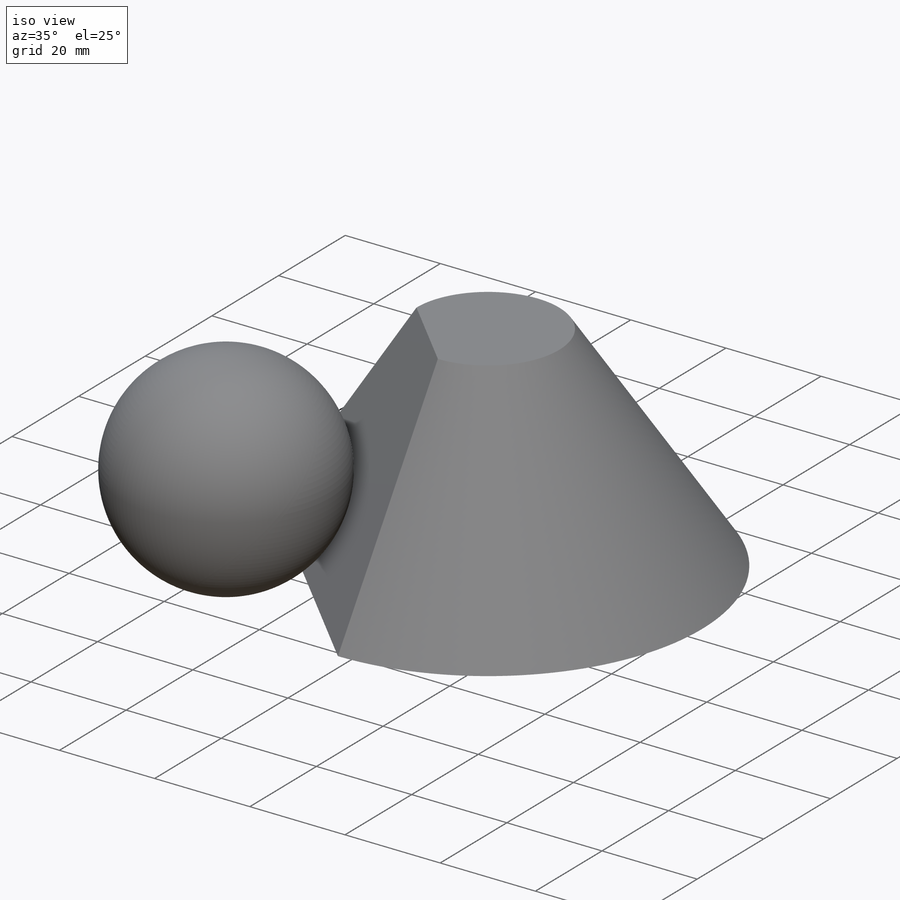
[diagram: iso view]
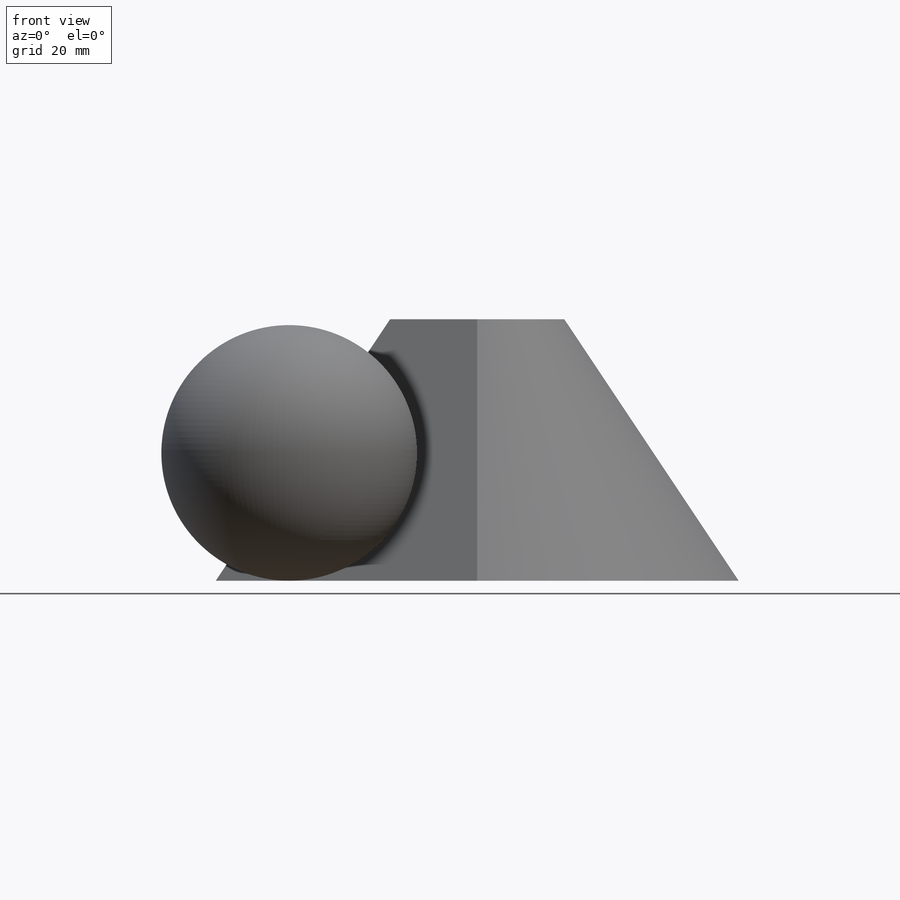
[diagram: front view]
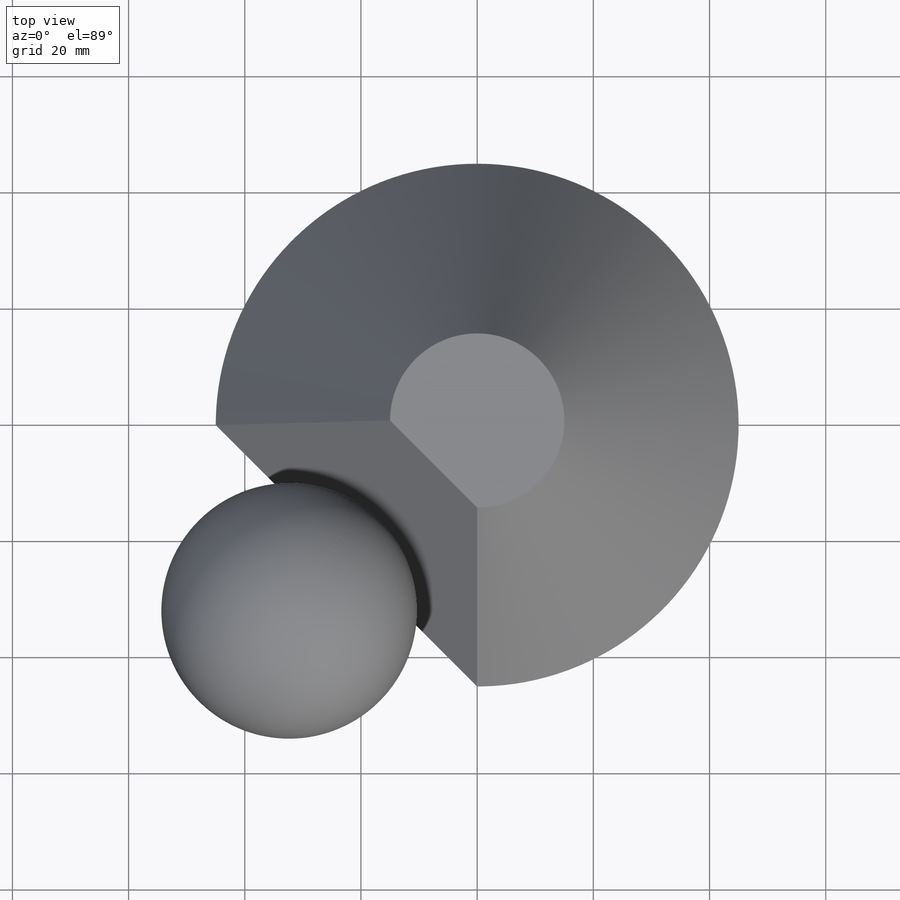
[diagram: top view]
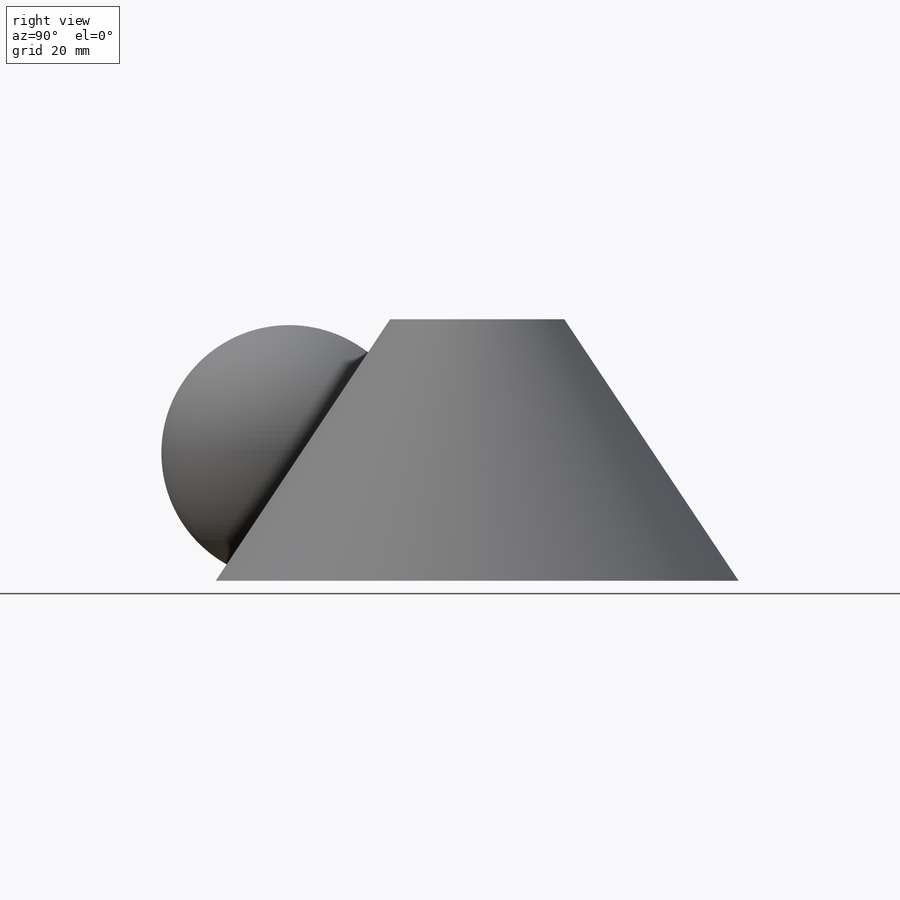
[diagram: right view]
SOLIDWORKS PART (.sldprt)
format: sldprt  version: not decoded by parser v0  size: 687,616 bytes
history: native  units: mm
features: sketch x7, plane x4, revolve x2, material x1 (+14 scaffold rows collapsed)
feature tree (28):
  scaffold x14  (default folders/planes/origin — collapsed)
  material  "Material <not specified>"
  sketch  "Sketch1"  dims[D1=90.0mm]
  plane  "Plane1"  Offset=45mm
  sketch  "Sketch2"  dims[D1=30.0mm]
  plane  "Plane2"
  sketch  "Sketch3"  dims[D1=44.0mm]
  revolve  "Revolve1"  Angle=360deg
  sketch  "Sketch4"  dims[c1.D2=45.0mm c1.D1=20.0mm c2.D2=15.0mm]
  sketch  "Sketch5"
  plane  "Plane3"
  sketch  "Sketch6"
  plane  "Plane4"
  sketch  "Sketch7"
  revolve  "Revolve2"  Angle=360deg
decode coverage: 6 of 9 modeling features carry decoded parameters
note: suppression state not decoded; provenance and decode notes live in map.json
